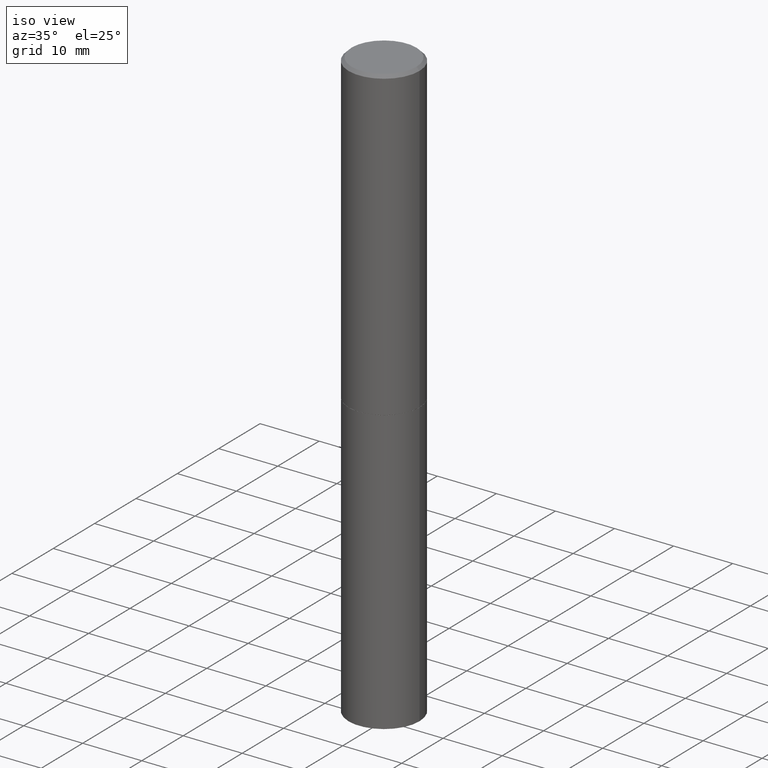
[diagram: clean part render]
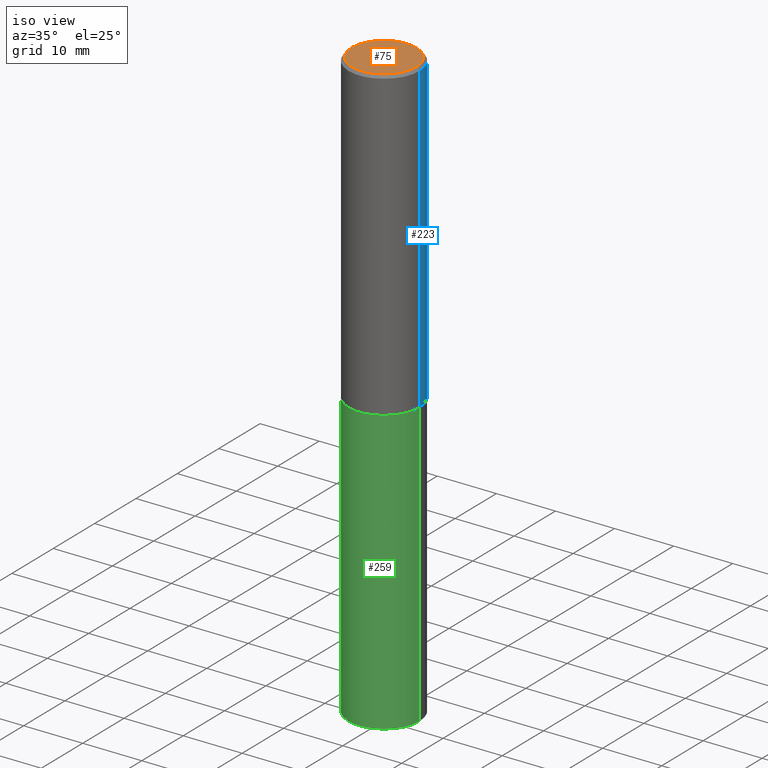
[diagram: same view with three faces highlighted in distinct colors, each labeled with its STEP entity id]
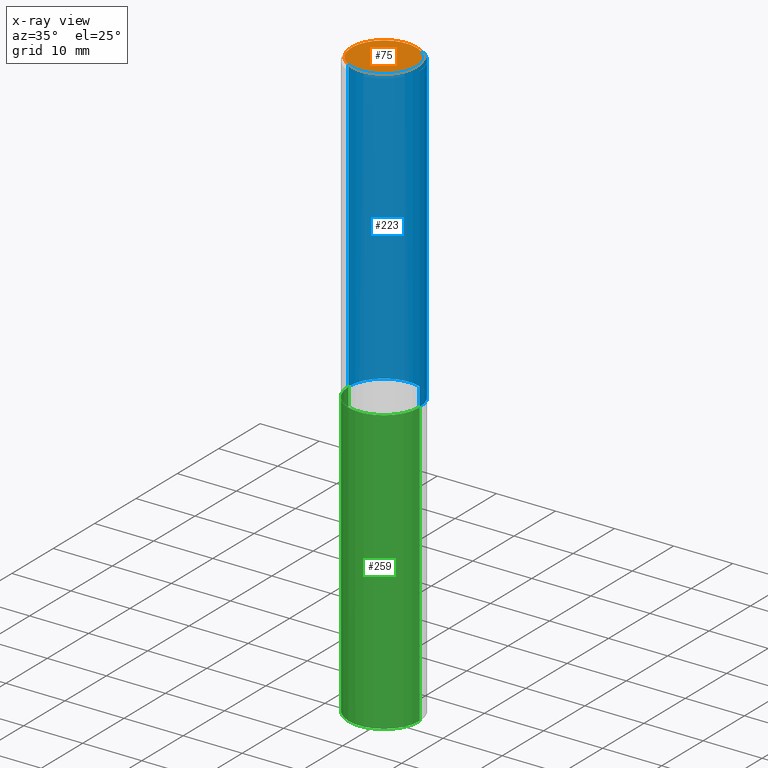
[diagram: x-ray of the same camera — body ghosted, the three highlighted faces saturated]
A machine part, iso view with three faces highlighted in distinct colors.
The next image is the same camera in x-ray (body ghosted, the three faces saturated) — at least one of them is partly hidden behind the body in this view.
Their STEP definitions:

[orange] entity #75 — the highlighted planar face has unit normal (0, -0, -1).
#5 = CARTESIAN_POINT ( 'NONE',  ( -1.043851414335219820E-46, 1.490343170380447200E-32, 4.268512490100411279E-18 ) ) ;
#8 = DIRECTION ( 'NONE',  ( 1.000000000000000000, -6.982962677686266711E-15, 4.876217060660162401E-29 ) ) ;
#14 = EDGE_LOOP ( 'NONE', ( #296, #83 ) ) ;
#26 = CARTESIAN_POINT ( 'NONE',  ( -0.2161999999999996980, 1.544631344304200000E-15, 4.268512490089730842E-18 ) ) ;
#28 = VERTEX_POINT ( 'NONE', #319 ) ;
#43 = DIRECTION ( 'NONE',  ( -1.000000000000000000, 6.982962677686265922E-15, -4.876176775795935793E-29 ) ) ;
#45 = CARTESIAN_POINT ( 'NONE',  ( -1.043851414335219820E-46, 1.490343170380447200E-32, 4.268512490100411279E-18 ) ) ;
#46 = EDGE_CURVE ( 'NONE', #28, #204, #340, .T. ) ;
#73 = DIRECTION ( 'NONE',  ( 2.438088387897960049E-29, -3.491481338843145188E-15, -1.000000000000000000 ) ) ;
#75 = ADVANCED_FACE ( 'NONE', ( #320 ), #301, .F. ) ;
#83 = ORIENTED_EDGE ( 'NONE', *, *, #46, .T. ) ;
#118 = AXIS2_PLACEMENT_3D ( 'NONE', #277, #73, #43 ) ;
#159 = DIRECTION ( 'NONE',  ( 1.000000000000000000, -6.982962677686266711E-15, 4.876217060660162401E-29 ) ) ;
#177 = EDGE_CURVE ( 'NONE', #204, #28, #189, .T. ) ;
#189 = CIRCLE ( 'NONE', #281, 0.2161999999999996980 ) ;
#201 = DIRECTION ( 'NONE',  ( -2.445468806185136597E-29, 3.491481338843145583E-15, 1.000000000000000000 ) ) ;
#204 = VERTEX_POINT ( 'NONE', #26 ) ;
#240 = DIRECTION ( 'NONE',  ( -2.445468806185136597E-29, 3.491481338843145583E-15, 1.000000000000000000 ) ) ;
#277 = CARTESIAN_POINT ( 'NONE',  ( 1.509716530915768548E-15, 0.2161999999999996980, -7.527240092128368218E-16 ) ) ;
#281 = AXIS2_PLACEMENT_3D ( 'NONE', #45, #201, #159 ) ;
#287 = AXIS2_PLACEMENT_3D ( 'NONE', #5, #240, #8 ) ;
#296 = ORIENTED_EDGE ( 'NONE', *, *, #177, .T. ) ;
#301 = PLANE ( 'NONE',  #118 ) ;
#319 = CARTESIAN_POINT ( 'NONE',  ( 0.2161999999999996980, -1.586759460484350016E-15, 4.268512490111238857E-18 ) ) ;
#320 = FACE_OUTER_BOUND ( 'NONE', #14, .T. ) ;
#340 = CIRCLE ( 'NONE', #287, 0.2161999999999996980 ) ;

[blue] entity #223 — the highlighted cylindrical surface (partial cylindrical patch) has radius 5.9995 mm, axis along (-0, 0, 1).
#2 = CIRCLE ( 'NONE', #56, 0.2361999999999997157 ) ;
#18 = DIRECTION ( 'NONE',  ( -2.445468806185136877E-29, 3.491481338843145188E-15, 1.000000000000000000 ) ) ;
#21 = ORIENTED_EDGE ( 'NONE', *, *, #268, .F. ) ;
#29 = CARTESIAN_POINT ( 'NONE',  ( -0.2361999999999997157, 1.579546157692631255E-15, -0.02000000000000005940 ) ) ;
#47 = DIRECTION ( 'NONE',  ( -2.445468806185136597E-29, 3.491481338843145583E-15, 1.000000000000000000 ) ) ;
#50 = CYLINDRICAL_SURFACE ( 'NONE', #329, 0.2361999999999998545 ) ;
#56 = AXIS2_PLACEMENT_3D ( 'NONE', #77, #222, #247 ) ;
#77 = CARTESIAN_POINT ( 'NONE',  ( 4.890937612370288047E-31, -6.982962677686311331E-17, -0.02000000000000005940 ) ) ;
#103 = FACE_OUTER_BOUND ( 'NONE', #152, .T. ) ;
#105 = DIRECTION ( 'NONE',  ( 1.000000000000000000, -6.982962677686266711E-15, 4.876176775795935793E-29 ) ) ;
#106 = DIRECTION ( 'NONE',  ( -2.445468806185136597E-29, 3.491481338843145583E-15, 1.000000000000000000 ) ) ;
#109 = LINE ( 'NONE', #325, #175 ) ;
#126 = VERTEX_POINT ( 'NONE', #158 ) ;
#129 = ORIENTED_EDGE ( 'NONE', *, *, #191, .T. ) ;
#152 = EDGE_LOOP ( 'NONE', ( #129, #184, #217, #21 ) ) ;
#154 = VERTEX_POINT ( 'NONE', #161 ) ;
#157 = EDGE_CURVE ( 'NONE', #126, #286, #109, .T. ) ;
#158 = CARTESIAN_POINT ( 'NONE',  ( -0.2362000000000000210, -1.928747429293494697E-15, -2.046200000000000241 ) ) ;
#161 = CARTESIAN_POINT ( 'NONE',  ( 0.2362000000000000210, -8.793644900010341720E-15, -2.046200000000000241 ) ) ;
#166 = LINE ( 'NONE', #194, #314 ) ;
#175 = VECTOR ( 'NONE', #18, 39.37007874015748143 ) ;
#184 = ORIENTED_EDGE ( 'NONE', *, *, #157, .T. ) ;
#191 = EDGE_CURVE ( 'NONE', #154, #126, #216, .T. ) ;
#194 = CARTESIAN_POINT ( 'NONE',  ( 0.2361999999999998545, -1.649375784469495145E-15, 1.151752954442999387E-29 ) ) ;
#195 = VERTEX_POINT ( 'NONE', #327 ) ;
#216 = CIRCLE ( 'NONE', #364, 0.2362000000000000210 ) ;
#217 = ORIENTED_EDGE ( 'NONE', *, *, #263, .F. ) ;
#222 = DIRECTION ( 'NONE',  ( -2.445468806185136597E-29, 3.491481338843145583E-15, 1.000000000000000000 ) ) ;
#223 = ADVANCED_FACE ( 'NONE', ( #103 ), #50, .T. ) ;
#225 = DIRECTION ( 'NONE',  ( 1.000000000000000000, -6.982962677686268288E-15, 0.000000000000000000 ) ) ;
#247 = DIRECTION ( 'NONE',  ( 1.000000000000000000, -6.982962677686266711E-15, 0.000000000000000000 ) ) ;
#263 = EDGE_CURVE ( 'NONE', #195, #286, #2, .T. ) ;
#268 = EDGE_CURVE ( 'NONE', #154, #195, #166, .T. ) ;
#280 = CARTESIAN_POINT ( 'NONE',  ( 5.003918271216026638E-29, -7.144269115540845195E-15, -2.046200000000000241 ) ) ;
#286 = VERTEX_POINT ( 'NONE', #29 ) ;
#304 = DIRECTION ( 'NONE',  ( -2.445468806185136877E-29, 3.491481338843145188E-15, 1.000000000000000000 ) ) ;
#309 = CARTESIAN_POINT ( 'NONE',  ( 0.000000000000000000, 0.000000000000000000, 0.000000000000000000 ) ) ;
#314 = VECTOR ( 'NONE', #304, 39.37007874015748143 ) ;
#325 = CARTESIAN_POINT ( 'NONE',  ( -0.2361999999999998545, 1.678301941865355605E-15, -1.161852468318208056E-29 ) ) ;
#327 = CARTESIAN_POINT ( 'NONE',  ( 0.2361999999999997157, -1.690279253850496996E-15, -0.02000000000000005940 ) ) ;
#329 = AXIS2_PLACEMENT_3D ( 'NONE', #309, #47, #105 ) ;
#364 = AXIS2_PLACEMENT_3D ( 'NONE', #280, #106, #225 ) ;

[green] entity #259 — the highlighted cylindrical surface (partial cylindrical patch) has radius 5.9995 mm, axis along (-0, 0, 1).
#20 = CARTESIAN_POINT ( 'NONE',  ( 0.2361999999999999933, -8.797136381349184727E-15, -2.047200000000000131 ) ) ;
#25 = VECTOR ( 'NONE', #352, 39.37007874015748143 ) ;
#35 = VECTOR ( 'NONE', #147, 39.37007874015748143 ) ;
#44 = EDGE_LOOP ( 'NONE', ( #111, #290, #206, #270 ) ) ;
#51 = VERTEX_POINT ( 'NONE', #219 ) ;
#64 = DIRECTION ( 'NONE',  ( -2.445468806185136597E-29, 3.491481338843145583E-15, 1.000000000000000000 ) ) ;
#80 = EDGE_CURVE ( 'NONE', #51, #238, #245, .T. ) ;
#82 = CYLINDRICAL_SURFACE ( 'NONE', #88, 0.2361999999999999933 ) ;
#87 = CARTESIAN_POINT ( 'NONE',  ( -0.2361999999999999933, 1.678301941865356591E-15, -1.161852468318208757E-29 ) ) ;
#88 = AXIS2_PLACEMENT_3D ( 'NONE', #356, #133, #303 ) ;
#89 = CIRCLE ( 'NONE', #145, 0.2361999999999999933 ) ;
#110 = CARTESIAN_POINT ( 'NONE',  ( 9.627810689950883669E-29, -1.374596203102546341E-14, -3.937000000000000277 ) ) ;
#111 = ORIENTED_EDGE ( 'NONE', *, *, #326, .F. ) ;
#120 = DIRECTION ( 'NONE',  ( 1.000000000000000000, -6.982962677686265133E-15, 0.000000000000000000 ) ) ;
#133 = DIRECTION ( 'NONE',  ( -2.445468806185136597E-29, 3.491481338843145583E-15, 1.000000000000000000 ) ) ;
#135 = CARTESIAN_POINT ( 'NONE',  ( -0.2361999999999999933, -8.768559372087217836E-15, -2.047200000000000131 ) ) ;
#139 = CARTESIAN_POINT ( 'NONE',  ( -0.2361999999999999933, -8.768559372087217836E-15, -3.937000000000000277 ) ) ;
#145 = AXIS2_PLACEMENT_3D ( 'NONE', #178, #64, #120 ) ;
#147 = DIRECTION ( 'NONE',  ( -2.445468806185136877E-29, 3.491481338843145188E-15, 1.000000000000000000 ) ) ;
#178 = CARTESIAN_POINT ( 'NONE',  ( 5.006363740022212241E-29, -7.147760596879688202E-15, -2.047200000000000131 ) ) ;
#188 = VERTEX_POINT ( 'NONE', #139 ) ;
#200 = DIRECTION ( 'NONE',  ( -2.445468806185136597E-29, 3.491481338843145583E-15, 1.000000000000000000 ) ) ;
#206 = ORIENTED_EDGE ( 'NONE', *, *, #80, .T. ) ;
#210 = EDGE_CURVE ( 'NONE', #188, #51, #322, .T. ) ;
#215 = CARTESIAN_POINT ( 'NONE',  ( 0.2361999999999999933, -1.649375784469496131E-15, 1.151752954443000088E-29 ) ) ;
#219 = CARTESIAN_POINT ( 'NONE',  ( 0.2361999999999999933, -1.539533781549495994E-14, -3.937000000000000277 ) ) ;
#238 = VERTEX_POINT ( 'NONE', #20 ) ;
#243 = VERTEX_POINT ( 'NONE', #135 ) ;
#245 = LINE ( 'NONE', #215, #25 ) ;
#259 = ADVANCED_FACE ( 'NONE', ( #331 ), #82, .T. ) ;
#265 = LINE ( 'NONE', #87, #35 ) ;
#266 = AXIS2_PLACEMENT_3D ( 'NONE', #110, #200, #310 ) ;
#270 = ORIENTED_EDGE ( 'NONE', *, *, #305, .F. ) ;
#290 = ORIENTED_EDGE ( 'NONE', *, *, #210, .T. ) ;
#303 = DIRECTION ( 'NONE',  ( 1.000000000000000000, -6.982962677686266711E-15, 4.876176775795936353E-29 ) ) ;
#305 = EDGE_CURVE ( 'NONE', #243, #238, #89, .T. ) ;
#310 = DIRECTION ( 'NONE',  ( 1.000000000000000000, -6.982962677686265133E-15, 0.000000000000000000 ) ) ;
#322 = CIRCLE ( 'NONE', #266, 0.2361999999999999933 ) ;
#326 = EDGE_CURVE ( 'NONE', #188, #243, #265, .T. ) ;
#331 = FACE_OUTER_BOUND ( 'NONE', #44, .T. ) ;
#352 = DIRECTION ( 'NONE',  ( -2.445468806185136877E-29, 3.491481338843145188E-15, 1.000000000000000000 ) ) ;
#356 = CARTESIAN_POINT ( 'NONE',  ( 0.000000000000000000, 0.000000000000000000, 0.000000000000000000 ) ) ;